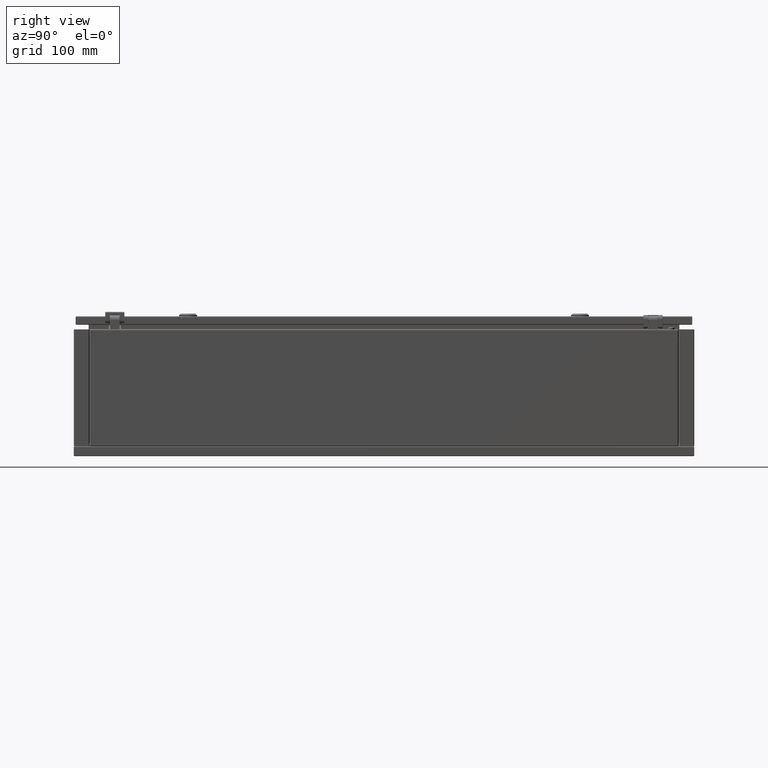
[diagram: clean part render]
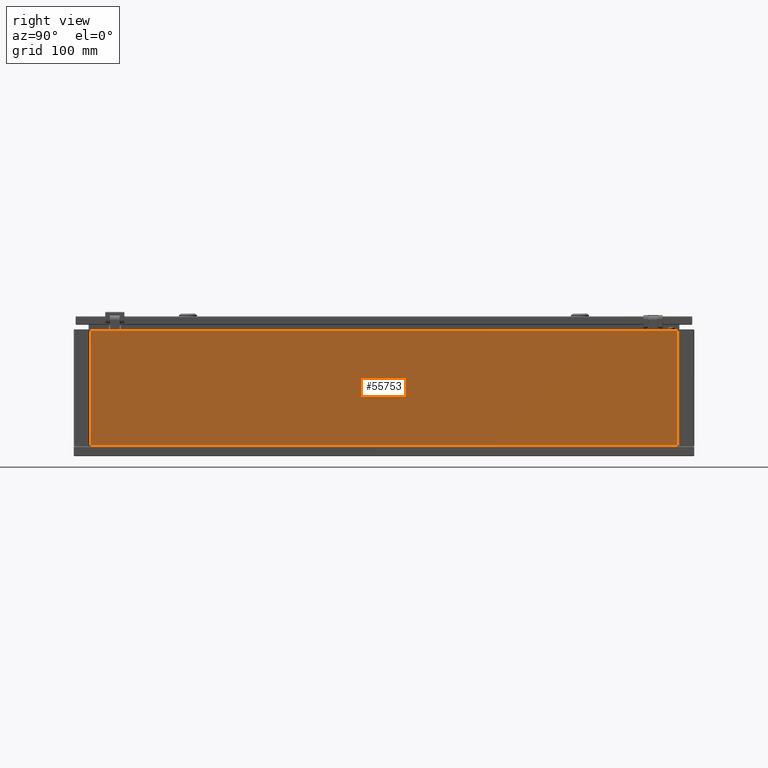
[diagram: same view with one face highlighted and labeled with its STEP entity id]
A machine part, right view. The second image highlights one B-rep face of the part: STEP entity #55753.
In plain terms, the highlighted planar face has unit normal (1, -0, -0).
Its self-contained STEP definition (entity closure, byte-faithful):
#417 = CARTESIAN_POINT ( 'NONE',  ( 275.0000000000000000, 450.7500000000100000, 15.50000000000299800 ) ) ;
#2689 = EDGE_LOOP ( 'NONE', ( #95665, #31135, #34806, #44237 ) ) ;
#8245 = EDGE_CURVE ( 'NONE', #74970, #26524, #28773, .T. ) ;
#9794 = DIRECTION ( 'NONE',  ( 1.665334536937769800E-016, 1.000000000000000000, -1.318389841742363800E-016 ) ) ;
#11359 = CARTESIAN_POINT ( 'NONE',  ( 275.0000000000000000, 450.7500000000100000, 191.5000000000030100 ) ) ;
#11588 = CARTESIAN_POINT ( 'NONE',  ( 275.0000000000000000, 449.2500000000099500, 15.50000000000299800 ) ) ;
#24829 = CARTESIAN_POINT ( 'NONE',  ( 275.0000000000000000, -449.2499999999905100, 191.5000000000030100 ) ) ;
#26365 = AXIS2_PLACEMENT_3D ( 'NONE', #86609, #40664, #9794 ) ;
#26524 = VERTEX_POINT ( 'NONE', #98189 ) ;
#28773 = LINE ( 'NONE', #11359, #40994 ) ;
#31135 = ORIENTED_EDGE ( 'NONE', *, *, #48840, .T. ) ;
#34806 = ORIENTED_EDGE ( 'NONE', *, *, #64713, .F. ) ;
#35664 = CARTESIAN_POINT ( 'NONE',  ( 275.0000000000000000, -449.2499999999905100, 191.5000000000030100 ) ) ;
#37124 = VERTEX_POINT ( 'NONE', #46458 ) ;
#40664 = DIRECTION ( 'NONE',  ( 1.000000000000000000, -1.665334536937775000E-016, -3.965082230804130600E-015 ) ) ;
#40994 = VECTOR ( 'NONE', #88138, 1000.000000000000000 ) ;
#44237 = ORIENTED_EDGE ( 'NONE', *, *, #52926, .T. ) ;
#45732 = VERTEX_POINT ( 'NONE', #87413 ) ;
#46458 = CARTESIAN_POINT ( 'NONE',  ( 275.0000000000000000, 449.2500000000089800, 15.50000000000299800 ) ) ;
#47156 = PLANE ( 'NONE',  #26365 ) ;
#48840 = EDGE_CURVE ( 'NONE', #74970, #45732, #90443, .T. ) ;
#52926 = EDGE_CURVE ( 'NONE', #37124, #26524, #81260, .T. ) ;
#55753 = ADVANCED_FACE ( 'NONE', ( #66394 ), #47156, .T. ) ;
#56385 = DIRECTION ( 'NONE',  ( -3.954062174942385400E-015, -2.243978408070900000E-016, -1.000000000000000000 ) ) ;
#58330 = VECTOR ( 'NONE', #64780, 1000.000000000000000 ) ;
#64713 = EDGE_CURVE ( 'NONE', #37124, #45732, #66479, .T. ) ;
#64780 = DIRECTION ( 'NONE',  ( 3.954062174942385400E-015, 2.243978408070900000E-016, 1.000000000000000000 ) ) ;
#66394 = FACE_OUTER_BOUND ( 'NONE', #2689, .T. ) ;
#66479 = LINE ( 'NONE', #417, #91813 ) ;
#74970 = VERTEX_POINT ( 'NONE', #35664 ) ;
#77212 = VECTOR ( 'NONE', #56385, 1000.000000000000000 ) ;
#81260 = LINE ( 'NONE', #11588, #58330 ) ;
#86609 = CARTESIAN_POINT ( 'NONE',  ( 275.0000000000000000, 450.7500000000100000, 15.50000000000299800 ) ) ;
#87413 = CARTESIAN_POINT ( 'NONE',  ( 275.0000000000000000, -449.2499999999905100, 15.50000000000310000 ) ) ;
#88138 = DIRECTION ( 'NONE',  ( 1.665334536937769800E-016, 1.000000000000000000, -1.318389841742363800E-016 ) ) ;
#90443 = LINE ( 'NONE', #24829, #77212 ) ;
#91813 = VECTOR ( 'NONE', #92385, 1000.000000000000000 ) ;
#92385 = DIRECTION ( 'NONE',  ( -1.665334536937769800E-016, -1.000000000000000000, 1.318389841742363800E-016 ) ) ;
#95665 = ORIENTED_EDGE ( 'NONE', *, *, #8245, .F. ) ;
#98189 = CARTESIAN_POINT ( 'NONE',  ( 275.0000000000000000, 449.2500000000089800, 191.5000000000030100 ) ) ;